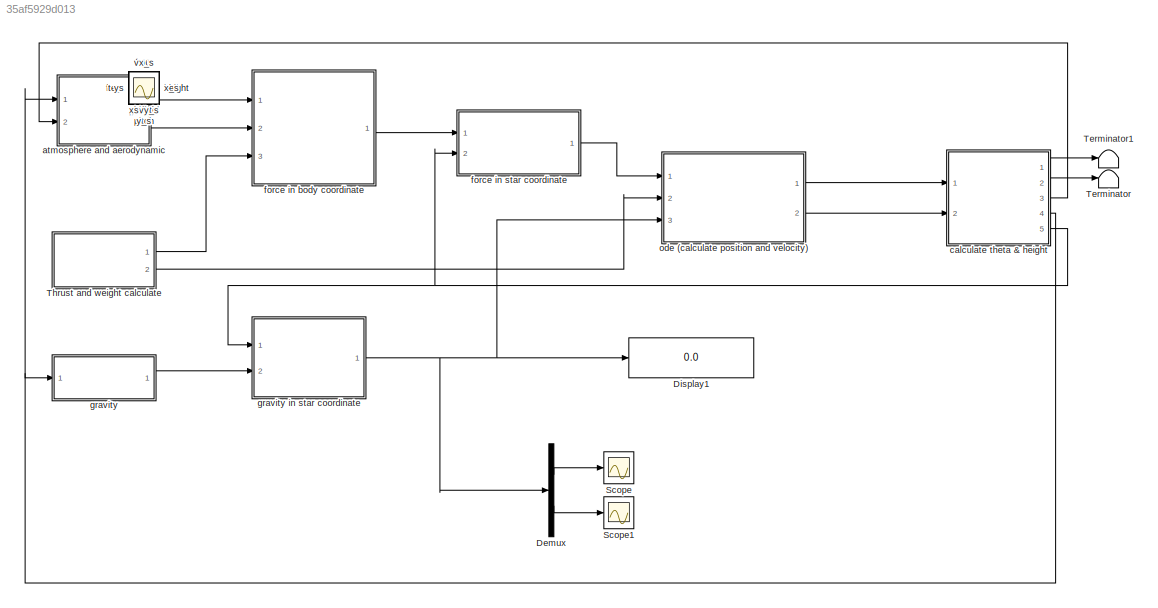
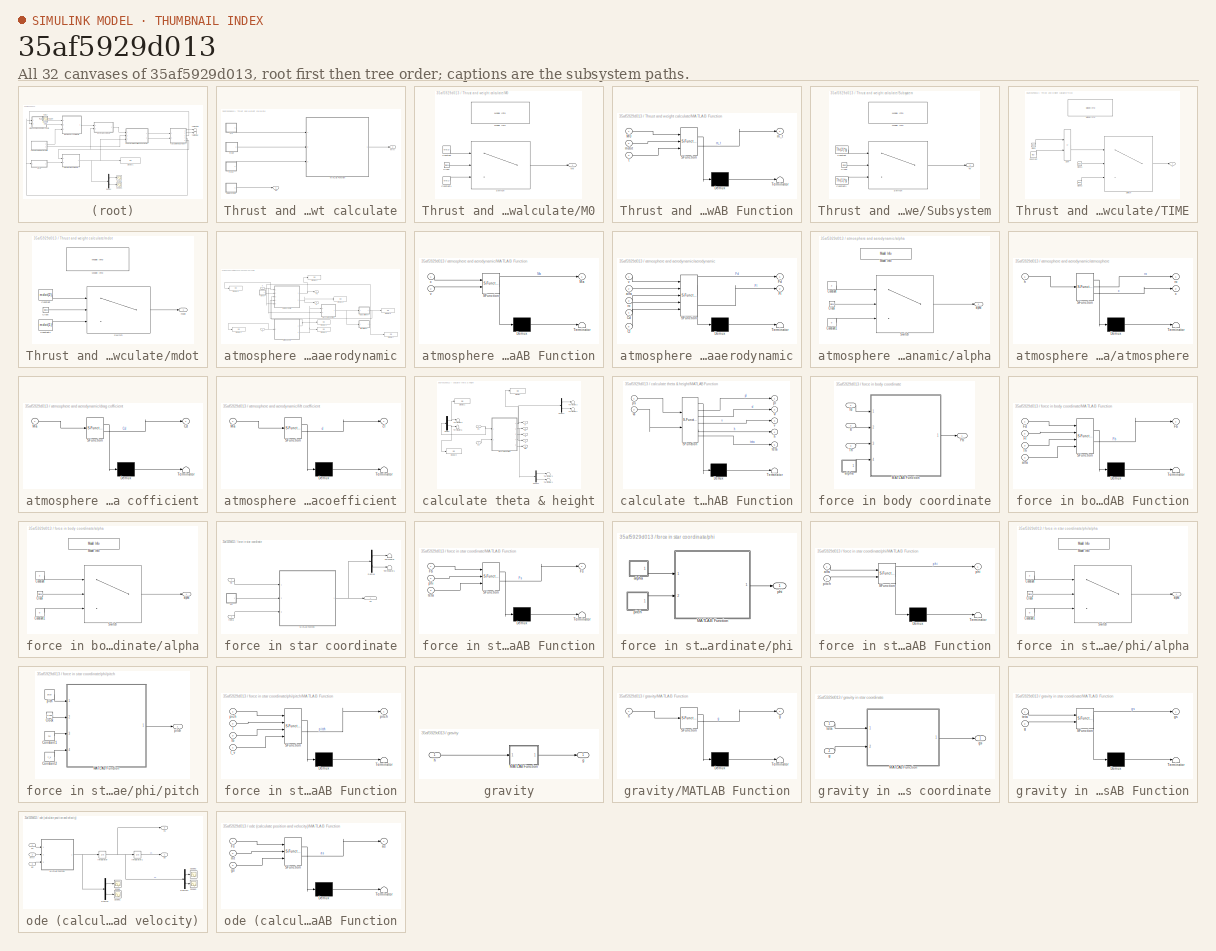
[diagram: thumbnail index - all 32 canvases of the model, root first then tree order]
MODEL slx_35af5929d013
KIND model
CONFIG AbsTol = auto
CONFIG EnableMultiTasking = off
CONFIG FixedStep = auto
CONFIG MaxStep = auto
CONFIG MinStep = auto
CONFIG RelTol = 1e-3
CONFIG SampleTimeConstraint = Unconstrained
CONFIG SolverName = VariableStepAuto
CONFIG StartTime = 0.0
CONFIG StopTime = 650
WORKSPACE source: mxarray member
WORKSPACE M0 = [262956.456 48383.96976]
WORKSPACE Th = [356460 23420]
WORKSPACE g = 0.00981
WORKSPACE h = 180
WORKSPACE mdot = [903.20832 49.35168]
WORKSPACE mpl = 9072
WORKSPACE pich = [16.5 -2.5]
WORKSPACE t_v = 12.0639369756
WORKSPACE tb = [217.7601 642.6815]
WORKSPACE tbtotal = 860.4416
WORKSPACE tv = 12.0639369756
BLOCK [Demux] Demux
  Outputs = 2
  Ports = [1, 2]
BLOCK [Display] Display1
  Decimation = 1
  Ports = [1]
BLOCK [Scope] M0
  Floating = off
  IOType = viewer
  NumInputPorts = 1
  Ports = []
  ScopeSpecificationString = Simulink.scopes.TimeScopeBlockCfg('CurrentConfiguration', extmgr.ConfigurationSet(extmgr.Configuration('Core','General UI',true,'FigureColor',[1 1 1]),extmgr.Configuration('Core','Source UI',true),extmgr.Configuration('Sources','WiredSimulink',true,'DataLoggingVariableName','ScopeData4'),extmgr.Configuration('Visuals','Time Domain',true,'SerializedDisplays',{struct('MinYLimReal','21562.40898','Max...<+1551ch>
BLOCK [Scope] Scope
  Floating = off
  NumInputPorts = 1
  Ports = [1]
  ScopeSpecificationString = Simulink.scopes.TimeScopeBlockCfg('CurrentConfiguration', extmgr.ConfigurationSet(extmgr.Configuration('Core','General UI',true),extmgr.Configuration('Core','Source UI',true),extmgr.Configuration('Sources','WiredSimulink',true,'DataLoggingVariableName','ScopeData8'),extmgr.Configuration('Visuals','Time Domain',true,'SerializedDisplays',{struct('MinYLimReal','-0.00396','MaxYLimReal','0.00044','YLab...<+1366ch>
BLOCK [Scope] Scope1
  Floating = off
  NumInputPorts = 1
  Ports = [1]
  ScopeSpecificationString = Simulink.scopes.TimeScopeBlockCfg('CurrentConfiguration', extmgr.ConfigurationSet(extmgr.Configuration('Core','General UI',true,'FigureColor',[1 1 1]),extmgr.Configuration('Core','Source UI',true),extmgr.Configuration('Sources','WiredSimulink',true,'DataLoggingVariableName','ScopeData9'),extmgr.Configuration('Visuals','Time Domain',true,'SerializedDisplays',{struct('MinYLimReal','-0.0099','MaxYLim...<+1516ch>
BLOCK [Terminator] Terminator
BLOCK [Terminator] Terminator1
BLOCK [SubSystem] Thrust and weight calculate
  Ports = [0, 2]
  RequestExecContextInheritance = off
BLOCK [SubSystem] Thrust and weight calculate/M0
  Ports = [0, 1]
  RequestExecContextInheritance = off
BLOCK [Clock] Thrust and weight calculate/M0/Clock
BLOCK [Constant] Thrust and weight calculate/M0/Constant
  Value = M0(2)
BLOCK [Constant] Thrust and weight calculate/M0/Constant1
  Value = M0(1)
BLOCK [Outport] Thrust and weight calculate/M0/M0
BLOCK [Reference] Thrust and weight calculate/M0/Model Info  REF=simulink/Model-Wide
Utilities/Model Info
  Ports = []
  SourceBlock = simulink/Model-Wide\nUtilities/Model Info
  SourceProductBaseCode = SL
  SourceType = CMBlock
BLOCK [Switch] Thrust and weight calculate/M0/Switch
  Criteria = u2 > Threshold
  InputSameDT = off
  SaturateOnIntegerOverflow = off
  Threshold = tb(1)
  ZeroCross = off
BLOCK [SubSystem] Thrust and weight calculate/MATLAB Function
  ErrorFcn = Stateflow.Translate.translate
  PermitHierarchicalResolution = ExplicitOnly
  Ports = [3, 1]
  RequestExecContextInheritance = off
  SFBlockType = MATLAB Function
  TreatAsAtomicUnit = on
BLOCK [Demux] Thrust and weight calculate/MATLAB Function/ Demux 
  Outputs = 1
  Ports = [1, 1]
BLOCK [S-Function] Thrust and weight calculate/MATLAB Function/ SFunction 
  EnableBusSupport = on
  FunctionName = sf_sfun
  PortCounts = [3 2]
  Ports = [3, 2]
  SFcnIsStateOwnerBlock = off
  SFunctionDeploymentMode = off
  Tag = Stateflow S-Function 6
BLOCK [Terminator] Thrust and weight calculate/MATLAB Function/ Terminator 
BLOCK [Inport] Thrust and weight calculate/MATLAB Function/M0
BLOCK [Outport] Thrust and weight calculate/MATLAB Function/m_t
BLOCK [Inport] Thrust and weight calculate/MATLAB Function/mdot
  Port = 2
BLOCK [Inport] Thrust and weight calculate/MATLAB Function/t
  Port = 3
BLOCK [SubSystem] Thrust and weight calculate/Subsystem
  Ports = [0, 1]
  RequestExecContextInheritance = off
BLOCK [Clock] Thrust and weight calculate/Subsystem/Clock
BLOCK [Constant] Thrust and weight calculate/Subsystem/Constant
  Value = Th(2)*g
BLOCK [Constant] Thrust and weight calculate/Subsystem/Constant1
  Value = Th(1)*g
BLOCK [Reference] Thrust and weight calculate/Subsystem/Model Info  REF=simulink/Model-Wide
Utilities/Model Info
  Ports = []
  SourceBlock = simulink/Model-Wide\nUtilities/Model Info
  SourceProductBaseCode = SL
  SourceType = CMBlock
BLOCK [Switch] Thrust and weight calculate/Subsystem/Switch
  Criteria = u2 > Threshold
  InputSameDT = off
  SaturateOnIntegerOverflow = off
  Threshold = tb(1)
BLOCK [Outport] Thrust and weight calculate/Subsystem/Th
BLOCK [SubSystem] Thrust and weight calculate/TIME
  Ports = [0, 1]
  RequestExecContextInheritance = off
BLOCK [Clock] Thrust and weight calculate/TIME/Clock
BLOCK [Clock] Thrust and weight calculate/TIME/Clock1
BLOCK [Clock] Thrust and weight calculate/TIME/Clock2
BLOCK [Constant] Thrust and weight calculate/TIME/Constant
  Value = tb(1)
BLOCK [Reference] Thrust and weight calculate/TIME/Model Info  REF=simulink/Model-Wide
Utilities/Model Info
  Ports = []
  SourceBlock = simulink/Model-Wide\nUtilities/Model Info
  SourceProductBaseCode = SL
  SourceType = CMBlock
BLOCK [Sum] Thrust and weight calculate/TIME/Sum
  IconShape = rectangular
  Inputs = |+-
  Ports = [2, 1]
BLOCK [Switch] Thrust and weight calculate/TIME/Switch
  Criteria = u2 > Threshold
  InputSameDT = off
  SaturateOnIntegerOverflow = off
  Threshold = tb(1)
BLOCK [Outport] Thrust and weight calculate/TIME/t
BLOCK [Outport] Thrust and weight calculate/Th
BLOCK [Outport] Thrust and weight calculate/m(t)
  Port = 2
BLOCK [SubSystem] Thrust and weight calculate/mdot
  Ports = [0, 1]
  RequestExecContextInheritance = off
BLOCK [Clock] Thrust and weight calculate/mdot/Clock
BLOCK [Constant] Thrust and weight calculate/mdot/Constant
  Value = mdot(2)
BLOCK [Constant] Thrust and weight calculate/mdot/Constant1
  Value = mdot(1)
BLOCK [Reference] Thrust and weight calculate/mdot/Model Info  REF=simulink/Model-Wide
Utilities/Model Info
  Ports = []
  SourceBlock = simulink/Model-Wide\nUtilities/Model Info
  SourceProductBaseCode = SL
  SourceType = CMBlock
BLOCK [Switch] Thrust and weight calculate/mdot/Switch
  Criteria = u2 > Threshold
  InputSameDT = off
  SaturateOnIntegerOverflow = off
  Threshold = tb(1)
BLOCK [Outport] Thrust and weight calculate/mdot/mdot
BLOCK [Scope] alpha
  Floating = off
  IOType = viewer
  NumInputPorts = 1
  Ports = []
  ScopeSpecificationString = Simulink.scopes.TimeScopeBlockCfg('CurrentConfiguration', extmgr.ConfigurationSet(extmgr.Configuration('Core','General UI',true,'FigureColor',[0.972549019607843 0.972549019607843 0.972549019607843]),extmgr.Configuration('Core','Source UI',true),extmgr.Configuration('Sources','WiredSimulink',true,'DataLoggingVariableName','ScopeData1'),extmgr.Configuration('Visuals','Time Domain',true,'SerializedDi...<+1556ch>
BLOCK [SubSystem] atmosphere and aerodynamic
  Ports = [2, 2]
  RequestExecContextInheritance = off
BLOCK [Display] atmosphere and aerodynamic/Display1
  Decimation = 1
  Ports = [1]
BLOCK [Display] atmosphere and aerodynamic/Display2
  Decimation = 1
  Ports = [1]
BLOCK [Display] atmosphere and aerodynamic/Display3
  Decimation = 1
  Ports = [1]
BLOCK [Display] atmosphere and aerodynamic/Display4
  Decimation = 1
  Ports = [1]
BLOCK [Display] atmosphere and aerodynamic/Display5
  Decimation = 1
  Ports = [1]
BLOCK [Display] atmosphere and aerodynamic/Display6
  Decimation = 1
  Ports = [1]
BLOCK [Display] atmosphere and aerodynamic/Display7
  Decimation = 1
  Ports = [1]
BLOCK [Display] atmosphere and aerodynamic/Display8
  Decimation = 1
  Ports = [1]
BLOCK [Outport] atmosphere and aerodynamic/Fd
BLOCK [Outport] atmosphere and aerodynamic/Fl
  Port = 2
BLOCK [SubSystem] atmosphere and aerodynamic/MATLAB Function
  ErrorFcn = Stateflow.Translate.translate
  PermitHierarchicalResolution = ExplicitOnly
  Ports = [2, 1]
  RequestExecContextInheritance = off
  SFBlockType = MATLAB Function
  TreatAsAtomicUnit = on
BLOCK [Demux] atmosphere and aerodynamic/MATLAB Function/ Demux 
  Outputs = 1
  Ports = [1, 1]
BLOCK [S-Function] atmosphere and aerodynamic/MATLAB Function/ SFunction 
  EnableBusSupport = on
  FunctionName = sf_sfun
  PortCounts = [2 2]
  Ports = [2, 2]
  SFcnIsStateOwnerBlock = off
  SFunctionDeploymentMode = off
  Tag = Stateflow S-Function 3
BLOCK [Terminator] atmosphere and aerodynamic/MATLAB Function/ Terminator 
BLOCK [Outport] atmosphere and aerodynamic/MATLAB Function/Ma
BLOCK [Inport] atmosphere and aerodynamic/MATLAB Function/c
BLOCK [Inport] atmosphere and aerodynamic/MATLAB Function/v
  Port = 2
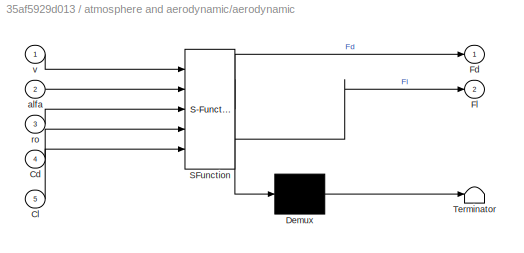
BLOCK [SubSystem] atmosphere and aerodynamic/aerodynamic
  ErrorFcn = Stateflow.Translate.translate
  PermitHierarchicalResolution = ExplicitOnly
  Ports = [5, 2]
  RequestExecContextInheritance = off
  SFBlockType = MATLAB Function
  TreatAsAtomicUnit = on
BLOCK [Demux] atmosphere and aerodynamic/aerodynamic/ Demux 
  Outputs = 1
  Ports = [1, 1]
BLOCK [S-Function] atmosphere and aerodynamic/aerodynamic/ SFunction 
  EnableBusSupport = on
  FunctionName = sf_sfun
  PortCounts = [5 3]
  Ports = [5, 3]
  SFcnIsStateOwnerBlock = off
  SFunctionDeploymentMode = off
  Tag = Stateflow S-Function 2
BLOCK [Terminator] atmosphere and aerodynamic/aerodynamic/ Terminator 
BLOCK [Inport] atmosphere and aerodynamic/aerodynamic/Cd
  Port = 4
BLOCK [Inport] atmosphere and aerodynamic/aerodynamic/Cl
  Port = 5
BLOCK [Outport] atmosphere and aerodynamic/aerodynamic/Fd
BLOCK [Outport] atmosphere and aerodynamic/aerodynamic/Fl
  Port = 2
BLOCK [Inport] atmosphere and aerodynamic/aerodynamic/alfa
  Port = 2
BLOCK [Inport] atmosphere and aerodynamic/aerodynamic/ro
  Port = 3
BLOCK [Inport] atmosphere and aerodynamic/aerodynamic/v
BLOCK [SubSystem] atmosphere and aerodynamic/alpha
  Ports = [0, 1]
  RequestExecContextInheritance = off
BLOCK [Clock] atmosphere and aerodynamic/alpha/Clock
BLOCK [Constant] atmosphere and aerodynamic/alpha/Constant
  Value = 2
BLOCK [Constant] atmosphere and aerodynamic/alpha/Constant1
  Value = 0
BLOCK [Reference] atmosphere and aerodynamic/alpha/Model Info  REF=simulink/Model-Wide
Utilities/Model Info
  Ports = []
  SourceBlock = simulink/Model-Wide\nUtilities/Model Info
  SourceProductBaseCode = SL
  SourceType = CMBlock
BLOCK [Switch] atmosphere and aerodynamic/alpha/Switch
  Criteria = u2 > Threshold
  InputSameDT = off
  SaturateOnIntegerOverflow = off
  Threshold = t_v
BLOCK [Outport] atmosphere and aerodynamic/alpha/alpha
BLOCK [SubSystem] atmosphere and aerodynamic/atmosphere
  ErrorFcn = Stateflow.Translate.translate
  PermitHierarchicalResolution = ExplicitOnly
  Ports = [1, 2]
  RequestExecContextInheritance = off
  SFBlockType = MATLAB Function
  TreatAsAtomicUnit = on
BLOCK [Demux] atmosphere and aerodynamic/atmosphere/ Demux 
  Outputs = 1
  Ports = [1, 1]
BLOCK [S-Function] atmosphere and aerodynamic/atmosphere/ SFunction 
  EnableBusSupport = on
  FunctionName = sf_sfun
  PortCounts = [1 3]
  Ports = [1, 3]
  SFcnIsStateOwnerBlock = off
  SFunctionDeploymentMode = off
  Tag = Stateflow S-Function 1
BLOCK [Terminator] atmosphere and aerodynamic/atmosphere/ Terminator 
BLOCK [Outport] atmosphere and aerodynamic/atmosphere/c
  Port = 2
BLOCK [Inport] atmosphere and aerodynamic/atmosphere/h
BLOCK [Outport] atmosphere and aerodynamic/atmosphere/ro
BLOCK [SubSystem] atmosphere and aerodynamic/drag cofficient
  ErrorFcn = Stateflow.Translate.translate
  PermitHierarchicalResolution = ExplicitOnly
  Ports = [1, 1]
  RequestExecContextInheritance = off
  SFBlockType = MATLAB Function
  TreatAsAtomicUnit = on
BLOCK [Demux] atmosphere and aerodynamic/drag cofficient/ Demux 
  Outputs = 1
  Ports = [1, 1]
BLOCK [S-Function] atmosphere and aerodynamic/drag cofficient/ SFunction 
  EnableBusSupport = on
  FunctionName = sf_sfun
  PortCounts = [1 2]
  Ports = [1, 2]
  SFcnIsStateOwnerBlock = off
  SFunctionDeploymentMode = off
  Tag = Stateflow S-Function 4
BLOCK [Terminator] atmosphere and aerodynamic/drag cofficient/ Terminator 
BLOCK [Outport] atmosphere and aerodynamic/drag cofficient/Cd
BLOCK [Inport] atmosphere and aerodynamic/drag cofficient/Ma
BLOCK [Inport] atmosphere and aerodynamic/h
BLOCK [SubSystem] atmosphere and aerodynamic/lift coefficient
  ErrorFcn = Stateflow.Translate.translate
  PermitHierarchicalResolution = ExplicitOnly
  Ports = [1, 1]
  RequestExecContextInheritance = off
  SFBlockType = MATLAB Function
  TreatAsAtomicUnit = on
BLOCK [Demux] atmosphere and aerodynamic/lift coefficient/ Demux 
  Outputs = 1
  Ports = [1, 1]
BLOCK [S-Function] atmosphere and aerodynamic/lift coefficient/ SFunction 
  EnableBusSupport = on
  FunctionName = sf_sfun
  PortCounts = [1 2]
  Ports = [1, 2]
  SFcnIsStateOwnerBlock = off
  SFunctionDeploymentMode = off
  Tag = Stateflow S-Function 5
BLOCK [Terminator] atmosphere and aerodynamic/lift coefficient/ Terminator 
BLOCK [Inport] atmosphere and aerodynamic/lift coefficient/Ma
BLOCK [Outport] atmosphere and aerodynamic/lift coefficient/cl
BLOCK [Inport] atmosphere and aerodynamic/v
  Port = 2
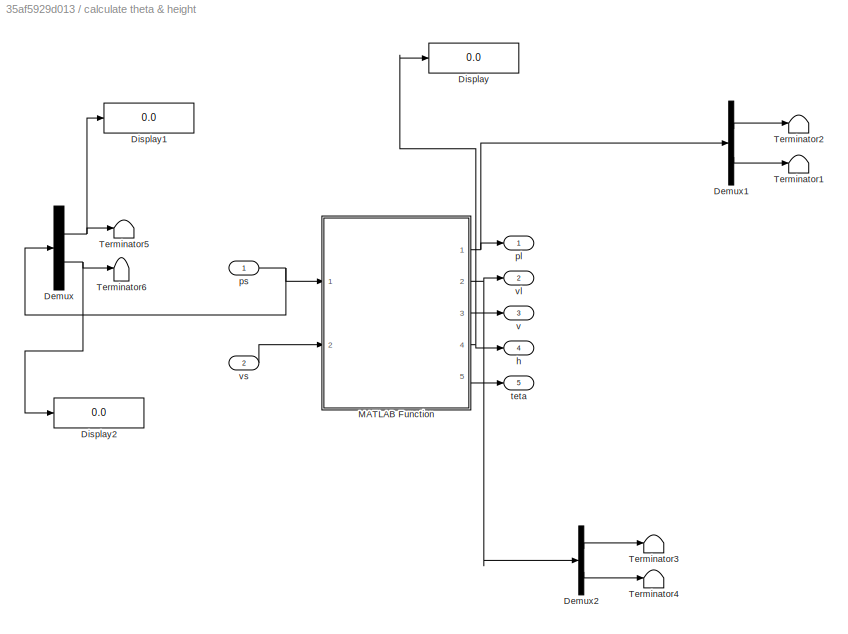
BLOCK [SubSystem] calculate theta & height
  Ports = [2, 5]
  RequestExecContextInheritance = off
BLOCK [Demux] calculate theta & height/Demux
  Outputs = 2
  Ports = [1, 2]
BLOCK [Demux] calculate theta & height/Demux1
  Outputs = 2
  Ports = [1, 2]
BLOCK [Demux] calculate theta & height/Demux2
  Outputs = 2
  Ports = [1, 2]
BLOCK [Display] calculate theta & height/Display
  Decimation = 1
  Format = long
  Ports = [1]
BLOCK [Display] calculate theta & height/Display1
  Decimation = 1
  Format = long
  Ports = [1]
BLOCK [Display] calculate theta & height/Display2
  Decimation = 1
  Format = long
  Ports = [1]
BLOCK [SubSystem] calculate theta & height/MATLAB Function
  ErrorFcn = Stateflow.Translate.translate
  PermitHierarchicalResolution = ExplicitOnly
  Ports = [2, 5]
  RequestExecContextInheritance = off
  SFBlockType = MATLAB Function
  TreatAsAtomicUnit = on
BLOCK [Demux] calculate theta & height/MATLAB Function/ Demux 
  Outputs = 1
  Ports = [1, 1]
BLOCK [S-Function] calculate theta & height/MATLAB Function/ SFunction 
  EnableBusSupport = on
  FunctionName = sf_sfun
  PortCounts = [2 6]
  Ports = [2, 6]
  SFcnIsStateOwnerBlock = off
  SFunctionDeploymentMode = off
  Tag = Stateflow S-Function 14
BLOCK [Terminator] calculate theta & height/MATLAB Function/ Terminator 
BLOCK [Outport] calculate theta & height/MATLAB Function/h
  Port = 4
BLOCK [Outport] calculate theta & height/MATLAB Function/pl
BLOCK [Inport] calculate theta & height/MATLAB Function/ps
BLOCK [Outport] calculate theta & height/MATLAB Function/teta
  Port = 5
BLOCK [Outport] calculate theta & height/MATLAB Function/v
  Port = 3
BLOCK [Outport] calculate theta & height/MATLAB Function/vl
  Port = 2
BLOCK [Inport] calculate theta & height/MATLAB Function/vs
  Port = 2
BLOCK [Terminator] calculate theta & height/Terminator1
BLOCK [Terminator] calculate theta & height/Terminator2
BLOCK [Terminator] calculate theta & height/Terminator3
BLOCK [Terminator] calculate theta & height/Terminator4
BLOCK [Terminator] calculate theta & height/Terminator5
BLOCK [Terminator] calculate theta & height/Terminator6
BLOCK [Outport] calculate theta & height/h
  Port = 4
BLOCK [Outport] calculate theta & height/pl
BLOCK [Inport] calculate theta & height/ps
BLOCK [Outport] calculate theta & height/teta
  Port = 5
BLOCK [Outport] calculate theta & height/v
  Port = 3
BLOCK [Outport] calculate theta & height/vl
  Port = 2
BLOCK [Inport] calculate theta & height/vs
  Port = 2
BLOCK [Scope] fd
  Floating = off
  IOType = viewer
  NumInputPorts = 1
  Ports = []
  ScopeSpecificationString = Simulink.scopes.TimeScopeBlockCfg('CurrentConfiguration', extmgr.ConfigurationSet(extmgr.Configuration('Core','General UI',true,'FigureColor',[1 1 1]),extmgr.Configuration('Core','Source UI',true),extmgr.Configuration('Sources','WiredSimulink',true,'DataLoggingVariableName','ScopeData2'),extmgr.Configuration('Visuals','Time Domain',true,'SerializedDisplays',{struct('MinYLimReal','-3.14833','MaxYLi...<+1529ch>
BLOCK [Scope] fl
  Floating = off
  IOType = viewer
  NumInputPorts = 1
  Ports = []
  ScopeSpecificationString = Simulink.scopes.TimeScopeBlockCfg('CurrentConfiguration', extmgr.ConfigurationSet(extmgr.Configuration('Core','General UI',true,'FigureColor',[1 1 1]),extmgr.Configuration('Core','Source UI',true),extmgr.Configuration('Sources','WiredSimulink',true,'DataLoggingVariableName','ScopeData3'),extmgr.Configuration('Visuals','Time Domain',true,'SerializedDisplays',{struct('MinYLimReal','-0.05181','MaxYLi...<+1525ch>
BLOCK [SubSystem] force in body coordinate
  Ports = [3, 1]
  RequestExecContextInheritance = off
BLOCK [Outport] force in body coordinate/Fb
BLOCK [SubSystem] force in body coordinate/MATLAB Function
  ErrorFcn = Stateflow.Translate.translate
  PermitHierarchicalResolution = ExplicitOnly
  Ports = [4, 1]
  RequestExecContextInheritance = off
  SFBlockType = MATLAB Function
  TreatAsAtomicUnit = on
BLOCK [Demux] force in body coordinate/MATLAB Function/ Demux 
  Outputs = 1
  Ports = [1, 1]
BLOCK [S-Function] force in body coordinate/MATLAB Function/ SFunction 
  EnableBusSupport = on
  FunctionName = sf_sfun
  PortCounts = [4 2]
  Ports = [4, 2]
  SFcnIsStateOwnerBlock = off
  SFunctionDeploymentMode = off
  Tag = Stateflow S-Function 9
BLOCK [Terminator] force in body coordinate/MATLAB Function/ Terminator 
BLOCK [Outport] force in body coordinate/MATLAB Function/Fb
BLOCK [Inport] force in body coordinate/MATLAB Function/Fd
BLOCK [Inport] force in body coordinate/MATLAB Function/Fl
  Port = 2
BLOCK [Inport] force in body coordinate/MATLAB Function/Th
  Port = 3
BLOCK [Inport] force in body coordinate/MATLAB Function/alfa
  Port = 4
BLOCK [Inport] force in body coordinate/Th
  Port = 3
BLOCK [SubSystem] force in body coordinate/alpha
  Ports = [0, 1]
  RequestExecContextInheritance = off
BLOCK [Clock] force in body coordinate/alpha/Clock
BLOCK [Constant] force in body coordinate/alpha/Constant
  Value = 2
BLOCK [Constant] force in body coordinate/alpha/Constant1
  Value = 0
BLOCK [Reference] force in body coordinate/alpha/Model Info  REF=simulink/Model-Wide
Utilities/Model Info
  Ports = []
  SourceBlock = simulink/Model-Wide\nUtilities/Model Info
  SourceProductBaseCode = SL
  SourceType = CMBlock
BLOCK [Switch] force in body coordinate/alpha/Switch
  Criteria = u2 > Threshold
  InputSameDT = off
  SaturateOnIntegerOverflow = off
  Threshold = t_v
BLOCK [Outport] force in body coordinate/alpha/alpha
BLOCK [Inport] force in body coordinate/fd
BLOCK [Inport] force in body coordinate/fl
  Port = 2
BLOCK [SubSystem] force in star coordinate
  Ports = [2, 1]
  RequestExecContextInheritance = off
BLOCK [Demux] force in star coordinate/Demux
  Outputs = 2
  Ports = [1, 2]
BLOCK [Inport] force in star coordinate/Fb
BLOCK [Outport] force in star coordinate/Fs
BLOCK [SubSystem] force in star coordinate/MATLAB Function
  ErrorFcn = Stateflow.Translate.translate
  PermitHierarchicalResolution = ExplicitOnly
  Ports = [3, 1]
  RequestExecContextInheritance = off
  SFBlockType = MATLAB Function
  TreatAsAtomicUnit = on
BLOCK [Demux] force in star coordinate/MATLAB Function/ Demux 
  Outputs = 1
  Ports = [1, 1]
BLOCK [S-Function] force in star coordinate/MATLAB Function/ SFunction 
  EnableBusSupport = on
  FunctionName = sf_sfun
  PortCounts = [3 2]
  Ports = [3, 2]
  SFcnIsStateOwnerBlock = off
  SFunctionDeploymentMode = off
  Tag = Stateflow S-Function 12
BLOCK [Terminator] force in star coordinate/MATLAB Function/ Terminator 
BLOCK [Inport] force in star coordinate/MATLAB Function/Fb
BLOCK [Outport] force in star coordinate/MATLAB Function/Fs
BLOCK [Inport] force in star coordinate/MATLAB Function/phi
  Port = 2
BLOCK [Inport] force in star coordinate/MATLAB Function/teta
  Port = 3
BLOCK [Terminator] force in star coordinate/Terminator
BLOCK [Terminator] force in star coordinate/Terminator1
BLOCK [SubSystem] force in star coordinate/phi
  Ports = [0, 1]
  RequestExecContextInheritance = off
BLOCK [SubSystem] force in star coordinate/phi/MATLAB Function
  ErrorFcn = Stateflow.Translate.translate
  PermitHierarchicalResolution = ExplicitOnly
  Ports = [2, 1]
  RequestExecContextInheritance = off
  SFBlockType = MATLAB Function
  TreatAsAtomicUnit = on
BLOCK [Demux] force in star coordinate/phi/MATLAB Function/ Demux 
  Outputs = 1
  Ports = [1, 1]
BLOCK [S-Function] force in star coordinate/phi/MATLAB Function/ SFunction 
  EnableBusSupport = on
  FunctionName = sf_sfun
  PortCounts = [2 2]
  Ports = [2, 2]
  SFcnIsStateOwnerBlock = off
  SFunctionDeploymentMode = off
  Tag = Stateflow S-Function 11
BLOCK [Terminator] force in star coordinate/phi/MATLAB Function/ Terminator 
BLOCK [Inport] force in star coordinate/phi/MATLAB Function/alfa
BLOCK [Outport] force in star coordinate/phi/MATLAB Function/phi
BLOCK [Inport] force in star coordinate/phi/MATLAB Function/pitch
  Port = 2
BLOCK [SubSystem] force in star coordinate/phi/alpha
  Ports = [0, 1]
  RequestExecContextInheritance = off
BLOCK [Clock] force in star coordinate/phi/alpha/Clock
BLOCK [Constant] force in star coordinate/phi/alpha/Constant
  Value = 2
BLOCK [Constant] force in star coordinate/phi/alpha/Constant1
  Value = 0
BLOCK [Reference] force in star coordinate/phi/alpha/Model Info  REF=simulink/Model-Wide
Utilities/Model Info
  Ports = []
  SourceBlock = simulink/Model-Wide\nUtilities/Model Info
  SourceProductBaseCode = SL
  SourceType = CMBlock
BLOCK [Switch] force in star coordinate/phi/alpha/Switch
  Criteria = u2 > Threshold
  InputSameDT = off
  SaturateOnIntegerOverflow = off
  Threshold = t_v
BLOCK [Outport] force in star coordinate/phi/alpha/alpha
BLOCK [Outport] force in star coordinate/phi/phi
BLOCK [SubSystem] force in star coordinate/phi/pitch
  Ports = [0, 1]
  RequestExecContextInheritance = off
BLOCK [Clock] force in star coordinate/phi/pitch/Clock
BLOCK [Constant] force in star coordinate/phi/pitch/Constant1
  Value = tb
BLOCK [Constant] force in star coordinate/phi/pitch/Constant2
  Value = t_v
BLOCK [SubSystem] force in star coordinate/phi/pitch/MATLAB Function
  ErrorFcn = Stateflow.Translate.translate
  PermitHierarchicalResolution = ExplicitOnly
  Ports = [4, 1]
  RequestExecContextInheritance = off
  SFBlockType = MATLAB Function
  TreatAsAtomicUnit = on
BLOCK [Demux] force in star coordinate/phi/pitch/MATLAB Function/ Demux 
  Outputs = 1
  Ports = [1, 1]
BLOCK [S-Function] force in star coordinate/phi/pitch/MATLAB Function/ SFunction 
  EnableBusSupport = on
  FunctionName = sf_sfun
  PortCounts = [4 2]
  Ports = [4, 2]
  SFcnIsStateOwnerBlock = off
  SFunctionDeploymentMode = off
  Tag = Stateflow S-Function 10
BLOCK [Terminator] force in star coordinate/phi/pitch/MATLAB Function/ Terminator 
BLOCK [Inport] force in star coordinate/phi/pitch/MATLAB Function/pich
BLOCK [Outport] force in star coordinate/phi/pitch/MATLAB Function/pitch
BLOCK [Inport] force in star coordinate/phi/pitch/MATLAB Function/t
  Port = 2
BLOCK [Inport] force in star coordinate/phi/pitch/MATLAB Function/t_v
  Port = 4
BLOCK [Inport] force in star coordinate/phi/pitch/MATLAB Function/tb
  Port = 3
BLOCK [Constant] force in star coordinate/phi/pitch/pich
  Value = pich
BLOCK [Outport] force in star coordinate/phi/pitch/pitch
BLOCK [Inport] force in star coordinate/theta
  Port = 2
BLOCK [Scope] fs_x
  Floating = off
  IOType = viewer
  NumInputPorts = 1
  Ports = []
  ScopeSpecificationString = Simulink.scopes.TimeScopeBlockCfg('CurrentConfiguration', extmgr.ConfigurationSet(extmgr.Configuration('Core','General UI',true,'FigureColor',[1 1 1]),extmgr.Configuration('Core','Source UI',true),extmgr.Configuration('Sources','WiredSimulink',true,'DataLoggingVariableName','ScopeData12'),extmgr.Configuration('Visuals','Time Domain',true,'SerializedDisplays',{struct('MinYLimReal','-555.72935','Max...<+1537ch>
BLOCK [Scope] fs_y
  Floating = off
  IOType = viewer
  NumInputPorts = 1
  Ports = []
  ScopeSpecificationString = Simulink.scopes.TimeScopeBlockCfg('CurrentConfiguration', extmgr.ConfigurationSet(extmgr.Configuration('Core','General UI',true,'FigureColor',[1 1 1]),extmgr.Configuration('Core','Source UI',true),extmgr.Configuration('Sources','WiredSimulink',true,'DataLoggingVariableName','ScopeData13'),extmgr.Configuration('Visuals','Time Domain',true,'SerializedDisplays',{struct('MinYLimReal','-521.59','MaxYLi...<+1531ch>
BLOCK [Scope] g
  Floating = off
  IOType = viewer
  NumInputPorts = 1
  Ports = []
  ScopeSpecificationString = Simulink.scopes.TimeScopeBlockCfg('CurrentConfiguration', extmgr.ConfigurationSet(extmgr.Configuration('Core','General UI',true),extmgr.Configuration('Core','Source UI',true),extmgr.Configuration('Sources','WiredSimulink',true,'DataLoggingVariableName','ScopeData6'),extmgr.Configuration('Visuals','Time Domain',true,'SerializedDisplays',{struct('MinYLimReal','0.00918','MaxYLimReal','0.00987','YLabe...<+1372ch>
BLOCK [SubSystem] gravity
  Ports = [1, 1]
  RequestExecContextInheritance = off
BLOCK [SubSystem] gravity in star coordinate
  Ports = [2, 1]
  RequestExecContextInheritance = off
BLOCK [SubSystem] gravity in star coordinate/MATLAB Function
  ErrorFcn = Stateflow.Translate.translate
  PermitHierarchicalResolution = ExplicitOnly
  Ports = [2, 1]
  RequestExecContextInheritance = off
  SFBlockType = MATLAB Function
  TreatAsAtomicUnit = on
BLOCK [Demux] gravity in star coordinate/MATLAB Function/ Demux 
  Outputs = 1
  Ports = [1, 1]
BLOCK [S-Function] gravity in star coordinate/MATLAB Function/ SFunction 
  EnableBusSupport = on
  FunctionName = sf_sfun
  PortCounts = [2 2]
  Ports = [2, 2]
  SFcnIsStateOwnerBlock = off
  SFunctionDeploymentMode = off
  Tag = Stateflow S-Function 8
BLOCK [Terminator] gravity in star coordinate/MATLAB Function/ Terminator 
BLOCK [Inport] gravity in star coordinate/MATLAB Function/g
  Port = 2
BLOCK [Outport] gravity in star coordinate/MATLAB Function/gs
BLOCK [Inport] gravity in star coordinate/MATLAB Function/teta
BLOCK [Inport] gravity in star coordinate/g
  Port = 2
BLOCK [Outport] gravity in star coordinate/gs
BLOCK [Inport] gravity in star coordinate/teta
BLOCK [SubSystem] gravity/MATLAB Function
  ErrorFcn = Stateflow.Translate.translate
  PermitHierarchicalResolution = ExplicitOnly
  Ports = [1, 1]
  RequestExecContextInheritance = off
  SFBlockType = MATLAB Function
  TreatAsAtomicUnit = on
BLOCK [Demux] gravity/MATLAB Function/ Demux 
  Outputs = 1
  Ports = [1, 1]
BLOCK [S-Function] gravity/MATLAB Function/ SFunction 
  EnableBusSupport = on
  FunctionName = sf_sfun
  PortCounts = [1 2]
  Ports = [1, 2]
  SFcnIsStateOwnerBlock = off
  SFunctionDeploymentMode = off
  Tag = Stateflow S-Function 7
BLOCK [Terminator] gravity/MATLAB Function/ Terminator 
BLOCK [Outport] gravity/MATLAB Function/g
BLOCK [Inport] gravity/MATLAB Function/h
BLOCK [Outport] gravity/g
BLOCK [Inport] gravity/h
BLOCK [Scope] gs
  Floating = off
  IOType = viewer
  NumInputPorts = 1
  Ports = []
  ScopeSpecificationString = Simulink.scopes.TimeScopeBlockCfg('CurrentConfiguration', extmgr.ConfigurationSet(extmgr.Configuration('Core','General UI',true),extmgr.Configuration('Core','Source UI',true),extmgr.Configuration('Sources','WiredSimulink',true,'DataLoggingVariableName','ScopeData7'),extmgr.Configuration('Visuals','Time Domain',true,'SerializedDisplays',{struct('MinYLimReal','-0.01102','MaxYLimReal','0.00122','YLab...<+1418ch>
BLOCK [Scope] h
  Floating = off
  IOType = viewer
  NumInputPorts = 1
  Ports = []
  ScopeSpecificationString = Simulink.scopes.TimeScopeBlockCfg('CurrentConfiguration', extmgr.ConfigurationSet(extmgr.Configuration('Core','General UI',true,'FigureColor',[1 1 1]),extmgr.Configuration('Core','Source UI',true),extmgr.Configuration('Sources','WiredSimulink',true,'DataLoggingVariableName','ScopeData18'),extmgr.Configuration('Visuals','Time Domain',true,'SerializedDisplays',{struct('MinYLimReal','-23.23309','MaxY...<+1594ch>
BLOCK [Scope] height
  Floating = off
  IOType = viewer
  NumInputPorts = 1
  Ports = []
  ScopeSpecificationString = Simulink.scopes.TimeScopeBlockCfg('CurrentConfiguration', extmgr.ConfigurationSet(extmgr.Configuration('Core','General UI',true),extmgr.Configuration('Core','Source UI',true),extmgr.Configuration('Sources','WiredSimulink',true),extmgr.Configuration('Visuals','Time Domain',true,'SerializedDisplays',{struct('MinYLimReal','-23.23309','MaxYLimReal','209.09784','YLabelReal','','MinYLimMag','0.00000','M...<+1366ch>
BLOCK [Scope] m_t
  Floating = off
  IOType = viewer
  NumInputPorts = 1
  Ports = []
  ScopeSpecificationString = Simulink.scopes.TimeScopeBlockCfg('CurrentConfiguration', extmgr.ConfigurationSet(extmgr.Configuration('Core','General UI',true,'FigureColor',[1 1 1]),extmgr.Configuration('Core','Source UI',true),extmgr.Configuration('Sources','WiredSimulink',true,'DataLoggingVariableName','ScopeData5'),extmgr.Configuration('Visuals','Time Domain',true,'SerializedDisplays',{struct('MinYLimReal','-14119.67922','Ma...<+1560ch>
BLOCK [SubSystem] ode (calculate position and velocity)
  Ports = [3, 2]
  RequestExecContextInheritance = off
BLOCK [Demux] ode (calculate position and velocity)/Demux
  Outputs = 2
  Ports = [1, 2]
BLOCK [Demux] ode (calculate position and velocity)/Demux1
  Outputs = 2
  Ports = [1, 2]
BLOCK [Inport] ode (calculate position and velocity)/Fs
BLOCK [Integrator] ode (calculate position and velocity)/Integrator
  InitialCondition = [0 ;0];
  Ports = [1, 1]
BLOCK [Integrator] ode (calculate position and velocity)/Integrator1
  InitialCondition = [0 ;0];
  Ports = [1, 1]
BLOCK [SubSystem] ode (calculate position and velocity)/MATLAB Function
  ErrorFcn = Stateflow.Translate.translate
  PermitHierarchicalResolution = ExplicitOnly
  Ports = [3, 1]
  RequestExecContextInheritance = off
  SFBlockType = MATLAB Function
  TreatAsAtomicUnit = on
BLOCK [Demux] ode (calculate position and velocity)/MATLAB Function/ Demux 
  Outputs = 1
  Ports = [1, 1]
BLOCK [S-Function] ode (calculate position and velocity)/MATLAB Function/ SFunction 
  EnableBusSupport = on
  FunctionName = sf_sfun
  PortCounts = [3 2]
  Ports = [3, 2]
  SFcnIsStateOwnerBlock = off
  SFunctionDeploymentMode = off
  Tag = Stateflow S-Function 13
BLOCK [Terminator] ode (calculate position and velocity)/MATLAB Function/ Terminator 
BLOCK [Inport] ode (calculate position and velocity)/MATLAB Function/Fs
BLOCK [Outport] ode (calculate position and velocity)/MATLAB Function/as
BLOCK [Inport] ode (calculate position and velocity)/MATLAB Function/gs
  Port = 3
BLOCK [Inport] ode (calculate position and velocity)/MATLAB Function/mt
  Port = 2
BLOCK [Scope] ode (calculate position and velocity)/Scope
  Floating = off
  NumInputPorts = 1
  Ports = [1]
  ScopeSpecificationString = Simulink.scopes.TimeScopeBlockCfg('CurrentConfiguration', extmgr.ConfigurationSet(extmgr.Configuration('Core','General UI',true,'FigureColor',[1 1 1]),extmgr.Configuration('Core','Source UI',true),extmgr.Configuration('Sources','WiredSimulink',true,'DataLoggingVariableName','ScopeData14'),extmgr.Configuration('Visuals','Time Domain',true,'SerializedDisplays',{struct('MinYLimReal','-0.00681','MaxYL...<+1600ch>
BLOCK [Scope] ode (calculate position and velocity)/Scope1
  Floating = off
  NumInputPorts = 1
  Ports = [1]
  ScopeSpecificationString = Simulink.scopes.TimeScopeBlockCfg('CurrentConfiguration', extmgr.ConfigurationSet(extmgr.Configuration('Core','General UI',true,'FigureColor',[1 1 1]),extmgr.Configuration('Core','Source UI',true),extmgr.Configuration('Sources','WiredSimulink',true,'DataLoggingVariableName','ScopeData15'),extmgr.Configuration('Visuals','Time Domain',true,'SerializedDisplays',{struct('MinYLimReal','-0.01388','MaxYL...<+1519ch>
BLOCK [Scope] ode (calculate position and velocity)/Scope2
  Floating = off
  NumInputPorts = 1
  Ports = [1]
  ScopeSpecificationString = Simulink.scopes.TimeScopeBlockCfg('CurrentConfiguration', extmgr.ConfigurationSet(extmgr.Configuration('Core','General UI',true,'FigureColor',[1 1 1]),extmgr.Configuration('Core','Source UI',true),extmgr.Configuration('Sources','WiredSimulink',true,'DataLoggingVariableName','ScopeData16'),extmgr.Configuration('Visuals','Time Domain',true,'SerializedDisplays',{struct('MinYLimReal','-0.71055','MaxYL...<+1520ch>
BLOCK [Scope] ode (calculate position and velocity)/Scope3
  Floating = off
  NumInputPorts = 1
  Ports = [1]
  ScopeSpecificationString = Simulink.scopes.TimeScopeBlockCfg('CurrentConfiguration', extmgr.ConfigurationSet(extmgr.Configuration('Core','General UI',true,'FigureColor',[1 1 1]),extmgr.Configuration('Core','Source UI',true),extmgr.Configuration('Sources','WiredSimulink',true,'DataLoggingVariableName','ScopeData17'),extmgr.Configuration('Visuals','Time Domain',true,'SerializedDisplays',{struct('MinYLimReal','-3.81426','MaxYL...<+1520ch>
BLOCK [Inport] ode (calculate position and velocity)/gs
  Port = 3
BLOCK [Inport] ode (calculate position and velocity)/m(t)
  Port = 2
BLOCK [Outport] ode (calculate position and velocity)/ps
BLOCK [Outport] ode (calculate position and velocity)/vs
  Port = 2
BLOCK [Scope] phi
  Floating = off
  IOType = viewer
  NumInputPorts = 1
  Ports = []
  ScopeSpecificationString = Simulink.scopes.TimeScopeBlockCfg('CurrentConfiguration', extmgr.ConfigurationSet(extmgr.Configuration('Core','General UI',true),extmgr.Configuration('Core','Source UI',true),extmgr.Configuration('Sources','WiredSimulink',true,'DataLoggingVariableName','ScopeData11'),extmgr.Configuration('Visuals','Time Domain',true,'SerializedDisplays',{struct('MinYLimReal','-12.0625','MaxYLimReal','103.5625','YL...<+1379ch>
BLOCK [Scope] pitch
  Floating = off
  IOType = viewer
  NumInputPorts = 1
  Ports = []
  ScopeSpecificationString = Simulink.scopes.TimeScopeBlockCfg('CurrentConfiguration', extmgr.ConfigurationSet(extmgr.Configuration('Core','General UI',true,'FigureColor',[1 1 1]),extmgr.Configuration('Core','Source UI',true),extmgr.Configuration('Sources','WiredSimulink',true,'DataLoggingVariableName','ScopeData10'),extmgr.Configuration('Visuals','Time Domain',true,'SerializedDisplays',{struct('MinYLimReal','-14.0625','MaxYL...<+1531ch>
BLOCK [Scope] teta
  Floating = off
  IOType = viewer
  NumInputPorts = 1
  Ports = []
  ScopeSpecificationString = Simulink.scopes.TimeScopeBlockCfg('CurrentConfiguration', extmgr.ConfigurationSet(extmgr.Configuration('Core','General UI',true,'FigureColor',[1 1 1]),extmgr.Configuration('Core','Source UI',true),extmgr.Configuration('Sources','WiredSimulink',true,'DataLoggingVariableName','ScopeData19'),extmgr.Configuration('Visuals','Time Domain',true,'SerializedDisplays',{struct('MinYLimReal','-2.67439','MaxYL...<+1536ch>
BLOCK [Scope] vx_s
  Floating = off
  IOType = viewer
  NumInputPorts = 1
  Ports = []
  ScopeSpecificationString = Simulink.scopes.TimeScopeBlockCfg('CurrentConfiguration', extmgr.ConfigurationSet(extmgr.Configuration('Core','General UI',true,'FigureColor',[1 1 1]),extmgr.Configuration('Core','Source UI',true),extmgr.Configuration('Sources','WiredSimulink',true,'DataLoggingVariableName','ScopeData22'),extmgr.Configuration('Visuals','Time Domain',true,'SerializedDisplays',{struct('MinYLimReal','-0.8122','MaxYLi...<+1518ch>
BLOCK [Scope] vy_s
  Floating = off
  IOType = viewer
  NumInputPorts = 1
  Ports = []
  ScopeSpecificationString = Simulink.scopes.TimeScopeBlockCfg('CurrentConfiguration', extmgr.ConfigurationSet(extmgr.Configuration('Core','General UI',true,'FigureColor',[1 1 1]),extmgr.Configuration('Core','Source UI',true),extmgr.Configuration('Sources','WiredSimulink',true,'DataLoggingVariableName','ScopeData23'),extmgr.Configuration('Visuals','Time Domain',true,'SerializedDisplays',{struct('MinYLimReal','-1.24718','MaxYL...<+1518ch>
BLOCK [Scope] x_s
  Floating = off
  IOType = viewer
  NumInputPorts = 1
  Ports = []
  ScopeSpecificationString = Simulink.scopes.TimeScopeBlockCfg('CurrentConfiguration', extmgr.ConfigurationSet(extmgr.Configuration('Core','General UI',true,'FigureColor',[1 1 1]),extmgr.Configuration('Core','Source UI',true),extmgr.Configuration('Sources','WiredSimulink',true,'DataLoggingVariableName','ScopeData20'),extmgr.Configuration('Visuals','Time Domain',true,'SerializedDisplays',{struct('MinYLimReal','-290.83503','Max...<+1538ch>
BLOCK [Scope] xs
  Floating = off
  IOType = viewer
  NumInputPorts = 1
  Ports = []
  ScopeSpecificationString = Simulink.scopes.TimeScopeBlockCfg('CurrentConfiguration', extmgr.ConfigurationSet(extmgr.Configuration('Core','General UI',true,'FigureColor',[1 1 1]),extmgr.Configuration('Core','Source UI',true),extmgr.Configuration('Sources','WiredSimulink',true,'DataLoggingVariableName','ScopeData24'),extmgr.Configuration('Visuals','Time Domain',true,'SerializedDisplays',{struct('MinYLimReal','-293.2389','MaxY...<+1535ch>
BLOCK [Scope] y_s
  Floating = off
  IOType = viewer
  NumInputPorts = 1
  Ports = []
  ScopeSpecificationString = Simulink.scopes.TimeScopeBlockCfg('CurrentConfiguration', extmgr.ConfigurationSet(extmgr.Configuration('Core','General UI',true,'FigureColor',[1 1 1]),extmgr.Configuration('Core','Source UI',true),extmgr.Configuration('Sources','WiredSimulink',true,'DataLoggingVariableName','ScopeData21'),extmgr.Configuration('Visuals','Time Domain',true,'SerializedDisplays',{struct('MinYLimReal','-61.52971','MaxY...<+1530ch>
BLOCK [Scope] ys
  Floating = off
  IOType = viewer
  NumInputPorts = 1
  Ports = []
  ScopeSpecificationString = Simulink.scopes.TimeScopeBlockCfg('CurrentConfiguration', extmgr.ConfigurationSet(extmgr.Configuration('Core','General UI',true,'FigureColor',[1 1 1]),extmgr.Configuration('Core','Source UI',true),extmgr.Configuration('Sources','WiredSimulink',true,'DataLoggingVariableName','ScopeData25'),extmgr.Configuration('Visuals','Time Domain',true,'SerializedDisplays',{struct('MinYLimReal','-456.07125','Max...<+1533ch>
LINE Demux:1 -> Scope:1
LINE Demux:2 -> Scope1:1
LINE Thrust and weight calculate/M0/Clock:1 -> Thrust and weight calculate/M0/Switch:2
LINE Thrust and weight calculate/M0/Constant1:1 -> Thrust and weight calculate/M0/Switch:3
LINE Thrust and weight calculate/M0/Constant:1 -> Thrust and weight calculate/M0/Switch:1
LINE Thrust and weight calculate/M0/Switch:1 -> Thrust and weight calculate/M0/M0:1
LINE Thrust and weight calculate/M0:1 -> Thrust and weight calculate/MATLAB Function:1
LINE Thrust and weight calculate/MATLAB Function:1 -> Thrust and weight calculate/m(t):1
LINE Thrust and weight calculate/Subsystem/Clock:1 -> Thrust and weight calculate/Subsystem/Switch:2
LINE Thrust and weight calculate/Subsystem/Constant1:1 -> Thrust and weight calculate/Subsystem/Switch:3
LINE Thrust and weight calculate/Subsystem/Constant:1 -> Thrust and weight calculate/Subsystem/Switch:1
LINE Thrust and weight calculate/Subsystem/Switch:1 -> Thrust and weight calculate/Subsystem/Th:1
LINE Thrust and weight calculate/Subsystem:1 -> Thrust and weight calculate/Th:1
LINE Thrust and weight calculate/TIME/Clock1:1 -> Thrust and weight calculate/TIME/Switch:2
LINE Thrust and weight calculate/TIME/Clock2:1 -> Thrust and weight calculate/TIME/Switch:3
LINE Thrust and weight calculate/TIME/Clock:1 -> Thrust and weight calculate/TIME/Sum:1
LINE Thrust and weight calculate/TIME/Constant:1 -> Thrust and weight calculate/TIME/Sum:2
LINE Thrust and weight calculate/TIME/Sum:1 -> Thrust and weight calculate/TIME/Switch:1
LINE Thrust and weight calculate/TIME/Switch:1 -> Thrust and weight calculate/TIME/t:1
LINE Thrust and weight calculate/TIME:1 -> Thrust and weight calculate/MATLAB Function:3
LINE Thrust and weight calculate/mdot/Clock:1 -> Thrust and weight calculate/mdot/Switch:2
LINE Thrust and weight calculate/mdot/Constant1:1 -> Thrust and weight calculate/mdot/Switch:3
LINE Thrust and weight calculate/mdot/Constant:1 -> Thrust and weight calculate/mdot/Switch:1
LINE Thrust and weight calculate/mdot/Switch:1 -> Thrust and weight calculate/mdot/mdot:1
LINE Thrust and weight calculate/mdot:1 -> Thrust and weight calculate/MATLAB Function:2
LINE Thrust and weight calculate:1 -> force in body coordinate:3
LINE Thrust and weight calculate:2 -> ode (calculate position and velocity):2
NET atmosphere and aerodynamic/MATLAB Function:1 -> atmosphere and aerodynamic/drag cofficient:1, atmosphere and aerodynamic/lift coefficient:1
NET atmosphere and aerodynamic/aerodynamic:1 -> atmosphere and aerodynamic/Display1:1, atmosphere and aerodynamic/Fd:1
NET atmosphere and aerodynamic/aerodynamic:2 -> atmosphere and aerodynamic/Display8:1, atmosphere and aerodynamic/Fl:1
LINE atmosphere and aerodynamic/alpha/Clock:1 -> atmosphere and aerodynamic/alpha/Switch:2
LINE atmosphere and aerodynamic/alpha/Constant1:1 -> atmosphere and aerodynamic/alpha/Switch:3
LINE atmosphere and aerodynamic/alpha/Constant:1 -> atmosphere and aerodynamic/alpha/Switch:1
LINE atmosphere and aerodynamic/alpha/Switch:1 -> atmosphere and aerodynamic/alpha/alpha:1
LINE atmosphere and aerodynamic/alpha:1 -> atmosphere and aerodynamic/aerodynamic:2
NET atmosphere and aerodynamic/atmosphere:1 -> atmosphere and aerodynamic/Display3:1, atmosphere and aerodynamic/aerodynamic:3
NET atmosphere and aerodynamic/atmosphere:2 -> atmosphere and aerodynamic/Display4:1, atmosphere and aerodynamic/MATLAB Function:1
NET atmosphere and aerodynamic/drag cofficient:1 -> atmosphere and aerodynamic/Display6:1, atmosphere and aerodynamic/aerodynamic:4
NET atmosphere and aerodynamic/h:1 -> atmosphere and aerodynamic/Display2:1, atmosphere and aerodynamic/atmosphere:1
NET atmosphere and aerodynamic/lift coefficient:1 -> atmosphere and aerodynamic/Display7:1, atmosphere and aerodynamic/aerodynamic:5
NET atmosphere and aerodynamic/v:1 -> atmosphere and aerodynamic/Display5:1, atmosphere and aerodynamic/MATLAB Function:2, atmosphere and aerodynamic/aerodynamic:1
LINE atmosphere and aerodynamic:1 -> force in body coordinate:1
LINE atmosphere and aerodynamic:2 -> force in body coordinate:2
LINE calculate theta & height/Demux1:1 -> calculate theta & height/Terminator2:1
LINE calculate theta & height/Demux1:2 -> calculate theta & height/Terminator1:1
LINE calculate theta & height/Demux2:1 -> calculate theta & height/Terminator3:1
LINE calculate theta & height/Demux2:2 -> calculate theta & height/Terminator4:1
NET calculate theta & height/Demux:1 -> calculate theta & height/Display1:1, calculate theta & height/Terminator5:1
NET calculate theta & height/Demux:2 -> calculate theta & height/Display2:1, calculate theta & height/Terminator6:1
NET calculate theta & height/MATLAB Function:1 -> calculate theta & height/Demux1:1, calculate theta & height/pl:1
NET calculate theta & height/MATLAB Function:2 -> calculate theta & height/Demux2:1, calculate theta & height/vl:1
LINE calculate theta & height/MATLAB Function:3 -> calculate theta & height/v:1
NET calculate theta & height/MATLAB Function:4 -> calculate theta & height/Display:1, calculate theta & height/h:1
LINE calculate theta & height/MATLAB Function:5 -> calculate theta & height/teta:1
NET calculate theta & height/ps:1 -> calculate theta & height/Demux:1, calculate theta & height/MATLAB Function:1
LINE calculate theta & height/vs:1 -> calculate theta & height/MATLAB Function:2
LINE calculate theta & height:1 -> Terminator1:1
LINE calculate theta & height:2 -> Terminator:1
LINE calculate theta & height:3 -> atmosphere and aerodynamic:2
NET calculate theta & height:4 -> atmosphere and aerodynamic:1, gravity:1
NET calculate theta & height:5 -> force in star coordinate:2, gravity in star coordinate:1
LINE force in body coordinate/MATLAB Function:1 -> force in body coordinate/Fb:1
LINE force in body coordinate/Th:1 -> force in body coordinate/MATLAB Function:3
LINE force in body coordinate/alpha/Clock:1 -> force in body coordinate/alpha/Switch:2
LINE force in body coordinate/alpha/Constant1:1 -> force in body coordinate/alpha/Switch:3
LINE force in body coordinate/alpha/Constant:1 -> force in body coordinate/alpha/Switch:1
LINE force in body coordinate/alpha/Switch:1 -> force in body coordinate/alpha/alpha:1
LINE force in body coordinate/alpha:1 -> force in body coordinate/MATLAB Function:4
LINE force in body coordinate/fd:1 -> force in body coordinate/MATLAB Function:1
LINE force in body coordinate/fl:1 -> force in body coordinate/MATLAB Function:2
LINE force in body coordinate:1 -> force in star coordinate:1
LINE force in star coordinate/Demux:1 -> force in star coordinate/Terminator:1
LINE force in star coordinate/Demux:2 -> force in star coordinate/Terminator1:1
LINE force in star coordinate/Fb:1 -> force in star coordinate/MATLAB Function:1
NET force in star coordinate/MATLAB Function:1 -> force in star coordinate/Demux:1, force in star coordinate/Fs:1
LINE force in star coordinate/phi/MATLAB Function:1 -> force in star coordinate/phi/phi:1
LINE force in star coordinate/phi/alpha/Clock:1 -> force in star coordinate/phi/alpha/Switch:2
LINE force in star coordinate/phi/alpha/Constant1:1 -> force in star coordinate/phi/alpha/Switch:3
LINE force in star coordinate/phi/alpha/Constant:1 -> force in star coordinate/phi/alpha/Switch:1
LINE force in star coordinate/phi/alpha/Switch:1 -> force in star coordinate/phi/alpha/alpha:1
LINE force in star coordinate/phi/alpha:1 -> force in star coordinate/phi/MATLAB Function:1
LINE force in star coordinate/phi/pitch/Clock:1 -> force in star coordinate/phi/pitch/MATLAB Function:2
LINE force in star coordinate/phi/pitch/Constant1:1 -> force in star coordinate/phi/pitch/MATLAB Function:3
LINE force in star coordinate/phi/pitch/Constant2:1 -> force in star coordinate/phi/pitch/MATLAB Function:4
LINE force in star coordinate/phi/pitch/MATLAB Function:1 -> force in star coordinate/phi/pitch/pitch:1
LINE force in star coordinate/phi/pitch/pich:1 -> force in star coordinate/phi/pitch/MATLAB Function:1
LINE force in star coordinate/phi/pitch:1 -> force in star coordinate/phi/MATLAB Function:2
LINE force in star coordinate/phi:1 -> force in star coordinate/MATLAB Function:2
LINE force in star coordinate/theta:1 -> force in star coordinate/MATLAB Function:3
LINE force in star coordinate:1 -> ode (calculate position and velocity):1
LINE gravity in star coordinate/MATLAB Function:1 -> gravity in star coordinate/gs:1
LINE gravity in star coordinate/g:1 -> gravity in star coordinate/MATLAB Function:2
LINE gravity in star coordinate/teta:1 -> gravity in star coordinate/MATLAB Function:1
NET gravity in star coordinate:1 -> Demux:1, Display1:1, ode (calculate position and velocity):3
LINE gravity/MATLAB Function:1 -> gravity/g:1
LINE gravity/h:1 -> gravity/MATLAB Function:1
LINE gravity:1 -> gravity in star coordinate:2
LINE ode (calculate position and velocity)/Demux1:1 -> ode (calculate position and velocity)/Scope2:1
LINE ode (calculate position and velocity)/Demux1:2 -> ode (calculate position and velocity)/Scope3:1
LINE ode (calculate position and velocity)/Demux:1 -> ode (calculate position and velocity)/Scope:1
LINE ode (calculate position and velocity)/Demux:2 -> ode (calculate position and velocity)/Scope1:1
LINE ode (calculate position and velocity)/Fs:1 -> ode (calculate position and velocity)/MATLAB Function:1
LINE ode (calculate position and velocity)/Integrator1:1 -> ode (calculate position and velocity)/ps:1
NET ode (calculate position and velocity)/Integrator:1 -> ode (calculate position and velocity)/Demux1:1, ode (calculate position and velocity)/Integrator1:1, ode (calculate position and velocity)/vs:1
NET ode (calculate position and velocity)/MATLAB Function:1 -> ode (calculate position and velocity)/Demux:1, ode (calculate position and velocity)/Integrator:1
LINE ode (calculate position and velocity)/gs:1 -> ode (calculate position and velocity)/MATLAB Function:3
LINE ode (calculate position and velocity)/m(t):1 -> ode (calculate position and velocity)/MATLAB Function:2
LINE ode (calculate position and velocity):1 -> calculate theta & height:1
LINE ode (calculate position and velocity):2 -> calculate theta & height:2
note: NET lines group one-source signal fan-out (src -> all destinations, sorted); 1:1 wires keep LINE
CHART force in star coordinate/MATLAB Function states=1 transitions=1
  STATE_LABEL 'eML_blk_kernel()'
  STATE_LABEL 'SCRIPT:\nfunction Fs = fcn(Fb,phi,teta)\n    \n    T_SB=[cosd(phi-teta) +sind(phi-teta);\n          sind(phi-teta) -cosd(phi-teta)];\n    Fs=T_SB*Fb;\n\nend\n'
CHART ode (calculate position and velocity)/MATLAB Function states=1 transitions=1
  STATE_LABEL 'eML_blk_kernel()'
  STATE_LABEL 'SCRIPT:\nfunction as = fcn(Fs,mt,gs)\n    aks=Fs/mt;\n    as=aks+gs;\nend\n\n'
CHART atmosphere and aerodynamic/atmosphere states=1 transitions=1
  STATE_LABEL 'eML_blk_kernel()'
  STATE_LABEL 'SCRIPT:\nfunction [ro,c]=ATMOSFER(h)\n% calculation of ro density air(kg/m^3) and sound velocity(m/s)\n%verces hight(m)\nro=0;\nc=0;\ng=9.806;mo=28.966;R=8314.34;\nif (h<=0) ro=1.22;c=340;end \n\nif (h>=0 && h<=11000) \n   hb=0 ; lm=-0.0065;   \n   pb=101325.0;rob=1.2266;tmb=287.827;\n   \n   tm=tmb+lm*(h-hb);\n   ro=rob*(tmb/tm)^(1+g*mo/(R*lm));\n   c=sqrt(1.4*R*tm/mo);\n   p=pb*(tmb/tm)^(g*mo/(R*lm));\nend\n%----...<+1367ch>'
CHART calculate theta & height/MATLAB Function states=1 transitions=1
  STATE_LABEL 'eML_blk_kernel()'
  STATE_LABEL 'SCRIPT:\nfunction [pl,vl,v,h,teta] = fcn(ps,vs)\n    Re=6378;\n    teta=atand(ps(1)/(Re+ps(2)));\n    h=(sqrt((ps(2)+Re)^2+(ps(1)^2))-Re);\n    T_LS=[cosd(teta) -sind(teta);\n          sind(teta)  cosd(teta)];\n    pl=T_LS*ps;\n    vl=T_LS*vs;\n    v=norm(vs);\nend\n\n'
CHART atmosphere and aerodynamic/aerodynamic states=1 transitions=1
  STATE_LABEL 'eML_blk_kernel()'
  STATE_LABEL 'SCRIPT:\nfunction  [Fd,Fl]   =  faero(v,alfa,ro,Cd,Cl)\n%  Calculate  aerodynamic forces(N)\n    s=pi*(2.4/2)^2;\n    Fd = 0.5*ro*v^2*s*Cd;\n    Fl=0.5*ro*v^2*s*Cl*deg2rad(alfa);\nend\n'
CHART atmosphere and aerodynamic/MATLAB Function states=1 transitions=1
  STATE_LABEL 'eML_blk_kernel()'
  STATE_LABEL 'SCRIPT:\nfunction Ma = fcn(c,v)\n\n    Ma=v/c;\nend\n'
CHART atmosphere and aerodynamic/drag cofficient states=1 transitions=1
  STATE_LABEL 'eML_blk_kernel()'
  STATE_LABEL 'SCRIPT:\nfunction Cd = fcn(Ma)\n\nMac= [1.00E-01, 1.50E-01, 2.00E-01, 2.50E-01, 3.00E-01, 3.50E-01, 4.00E-01, 4.50E-01, 5.00E-01, 5.50E-01, 6.00E-01, 6.50E-01, 7.00E-01, 7.50E-01, 8.00E-01, 8.50E-01, 9.00E-01, 9.50E-01, 1.00E+00, 1.05E+00, 1.10E+00, 1.15E+00, 1.20E+00, 1.30E+00, 1.67E+00, 2.04E+00, 2.41E+00, 2.78E+00, 3.15E+00, 3.52E+00, 3.89E+00, 4.26E+00, 4.63E+00, 5.00E+00, 6.00E+00, 7.00E+00, 8.0...<+699ch>'
CHART atmosphere and aerodynamic/lift coefficient states=1 transitions=1
  STATE_LABEL 'eML_blk_kernel()'
  STATE_LABEL 'SCRIPT:\nfunction cl = fcn(Ma)\n\nMac= [1.00E-01, 1.50E-01, 2.00E-01, 2.50E-01, 3.00E-01, 3.50E-01, 4.00E-01, 4.50E-01, 5.00E-01, 5.50E-01, 6.00E-01, 6.50E-01, 7.00E-01, 7.50E-01, 8.00E-01, 8.50E-01, 9.00E-01, 9.50E-01, 1.00E+00, 1.05E+00, 1.10E+00, 1.15E+00, 1.20E+00, 1.30E+00, 1.67E+00, 2.04E+00, 2.41E+00, 2.78E+00, 3.15E+00, 3.52E+00, 3.89E+00, 4.26E+00, 4.63E+00, 5.00E+00,  6.00E+00, 7.00E+00, 8....<+656ch>'
CHART Thrust and weight calculate/MATLAB Function states=1 transitions=1
  STATE_LABEL 'eML_blk_kernel()'
  STATE_LABEL 'SCRIPT:\nfunction m_t = fcn(M0,mdot,t)\n\nm_t=M0-mdot*t;\n\nend\n\n'
CHART gravity/MATLAB Function states=1 transitions=1
  STATE_LABEL 'eML_blk_kernel()'
  STATE_LABEL 'SCRIPT:\nfunction g = fcn(h)\n    %MU(M^3/S^2)\n    mu=3.9862*10^5;\n    Re=6378;\n    r=Re+h;\n    g=mu/r^2;\nend'
CHART gravity in star coordinate/MATLAB Function states=1 transitions=1
  STATE_LABEL 'eML_blk_kernel()'
  STATE_LABEL 'SCRIPT:\nfunction gs= fcn(teta,g)\n%teta=Atan(xs/Re+ys)\n    gxs=-g*sind(teta);\n    gys=-g*cosd(teta);\n    gs=[gxs;gys];\nend\n\n\n'
CHART force in body coordinate/MATLAB Function states=1 transitions=1
  STATE_LABEL 'eML_blk_kernel()'
  STATE_LABEL 'SCRIPT:\nfunction Fb = fcn(Fd,Fl,Th,alfa)\n    fxb=Th-Fd*cosd(alfa)+Fl*sind(alfa);\n    fyb=-Fl*cosd(alfa)-Fd*sind(alfa);\n    Fb=[fxb;fyb];\nend\n\n'
CHART force in star coordinate/phi/pitch/MATLAB Function states=1 transitions=1
  STATE_LABEL 'eML_blk_kernel()'
  STATE_LABEL 'SCRIPT:\nfunction pitch = fcn(pich,t,tb,t_v)\npitch=0;\nif t<=t_v\n    pitch=90;\nelseif t>t_v && t<=tb(1)\n    pitch=(90-pich(1))*((tb(1)-t)/(tb(1)-t_v))^2+pich(1);\nelseif t>tb(1)\n%     c0=(tand(pich(1))-tand(pich(2)))/650-tb(1);\n%     tanl=tand(pich(1)-c0*tb(2));\n%     pitch=atand(tanl-c0*t);\n    pitch=pich(1)-((pich(1)-pich(2))/(650-tb(1)))*(t-tb(1));\nend\nend\n'
CHART force in star coordinate/phi/MATLAB Function states=1 transitions=1
  STATE_LABEL 'eML_blk_kernel()'
  STATE_LABEL 'SCRIPT:\nfunction phi = fcn(alfa,pitch)\n    %pitch=gamma\n    %phi=alfa+pitch;\n    phi=alfa+pitch;\nend\n\n'
CHART  states=0 transitions=0
CHART  states=0 transitions=0
CHART  states=0 transitions=0
CHART  states=0 transitions=0
CHART  states=0 transitions=0
CHART  states=0 transitions=0
CHART  states=0 transitions=0
CHART  states=0 transitions=0
CHART  states=0 transitions=0
CHART  states=0 transitions=0
CHART  states=0 transitions=0
CHART  states=0 transitions=0
CHART  states=0 transitions=0
CHART  states=0 transitions=0
